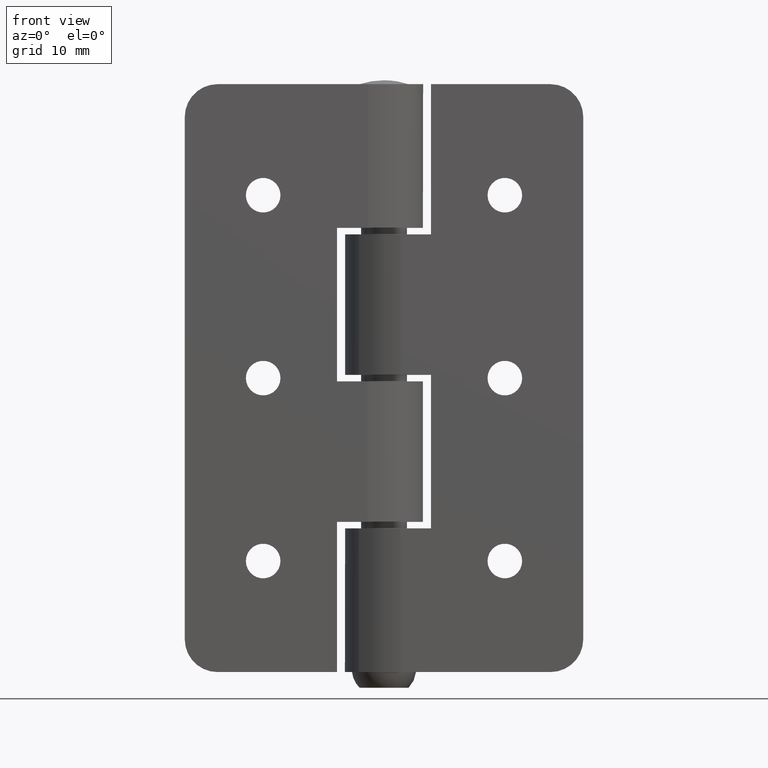
[diagram: clean part render]
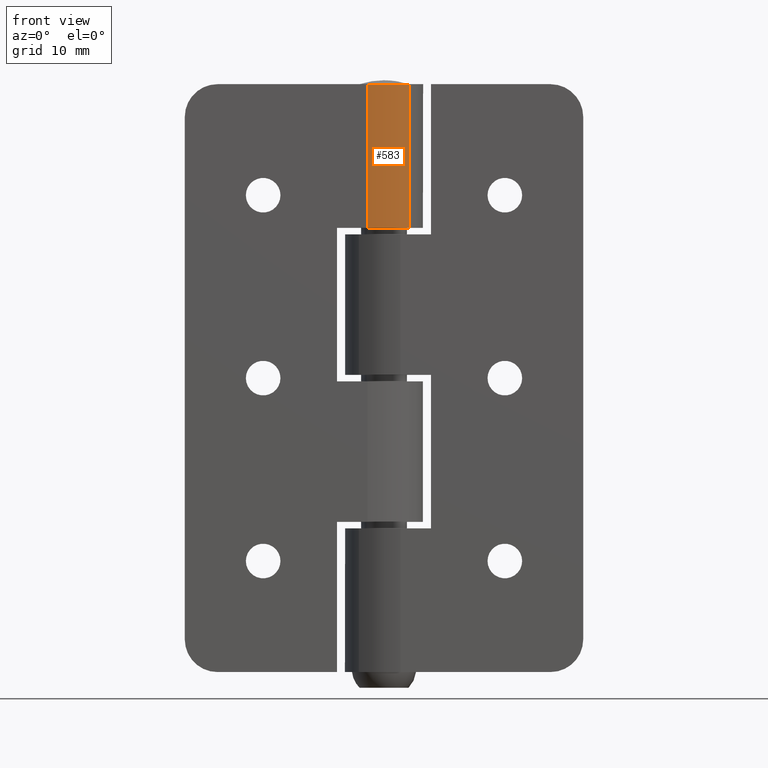
[diagram: same view with one face highlighted and labeled with its STEP entity id]
A machine part, front view. The second image highlights one B-rep face of the part: STEP entity #583.
In plain terms, the highlighted cylindrical surface (partial cylindrical patch) has radius 9.6054 mm, axis along (0, 0, -1).
Its self-contained STEP definition (entity closure, byte-faithful):
#61=LINE('',#934,#94);
#77=LINE('',#1010,#110);
#94=VECTOR('',#744,22.);
#110=VECTOR('',#818,22.);
#124=CYLINDRICAL_SURFACE('',#653,9.6053736426417);
#174=FACE_OUTER_BOUND('',#222,.T.);
#222=EDGE_LOOP('',(#506,#507,#508,#509));
#263=CIRCLE('',#635,9.6053736426417);
#270=CIRCLE('',#646,9.6053736426417);
#306=VERTEX_POINT('',#931);
#307=VERTEX_POINT('',#933);
#315=VERTEX_POINT('',#968);
#323=VERTEX_POINT('',#992);
#364=EDGE_CURVE('',#307,#306,#61,.T.);
#377=EDGE_CURVE('',#315,#307,#263,.T.);
#390=EDGE_CURVE('',#306,#323,#270,.T.);
#398=EDGE_CURVE('',#315,#323,#77,.T.);
#506=ORIENTED_EDGE('',*,*,#390,.T.);
#507=ORIENTED_EDGE('',*,*,#398,.F.);
#508=ORIENTED_EDGE('',*,*,#377,.T.);
#509=ORIENTED_EDGE('',*,*,#364,.T.);
#583=ADVANCED_FACE('',(#174),#124,.T.);
#635=AXIS2_PLACEMENT_3D('',#969,#771,#772);
#646=AXIS2_PLACEMENT_3D('',#994,#799,#800);
#653=AXIS2_PLACEMENT_3D('',#1009,#816,#817);
#744=DIRECTION('',(0.,0.,-1.));
#771=DIRECTION('center_axis',(0.,0.,-1.));
#772=DIRECTION('ref_axis',(-2.31167066671197E-16,1.,0.));
#799=DIRECTION('center_axis',(0.,0.,1.));
#800=DIRECTION('ref_axis',(-2.31167066671197E-16,1.,0.));
#816=DIRECTION('center_axis',(0.,0.,-1.));
#817=DIRECTION('ref_axis',(-2.31167066671197E-16,1.,0.));
#818=DIRECTION('',(0.,0.,-1.));
#931=CARTESIAN_POINT('',(-2.5,1.11022302462516E-15,-22.));
#933=CARTESIAN_POINT('',(-2.5,1.11022302462516E-15,0.));
#934=CARTESIAN_POINT('',(-2.5,1.11022302462516E-15,0.));
#968=CARTESIAN_POINT('',(3.84363555502778,2.39278112956131,0.));
#969=CARTESIAN_POINT('Origin',(-2.5,9.6053736426417,0.));
#992=CARTESIAN_POINT('',(3.84363555502778,2.39278112956131,-22.));
#994=CARTESIAN_POINT('Origin',(-2.5,9.6053736426417,-22.));
#1009=CARTESIAN_POINT('Origin',(-2.5,9.6053736426417,0.));
#1010=CARTESIAN_POINT('',(3.84363555502778,2.39278112956131,0.));